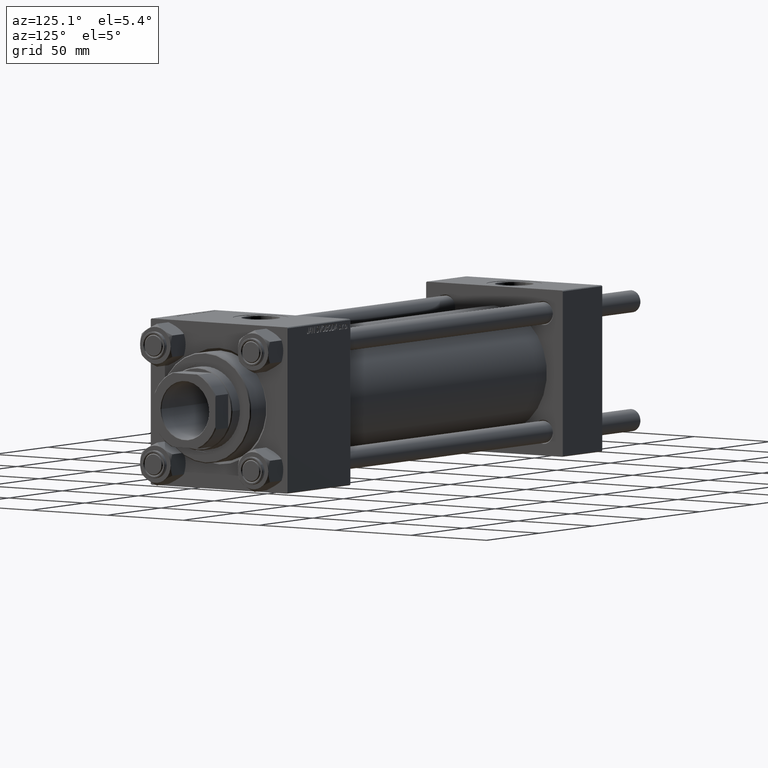
[diagram: clean part render]
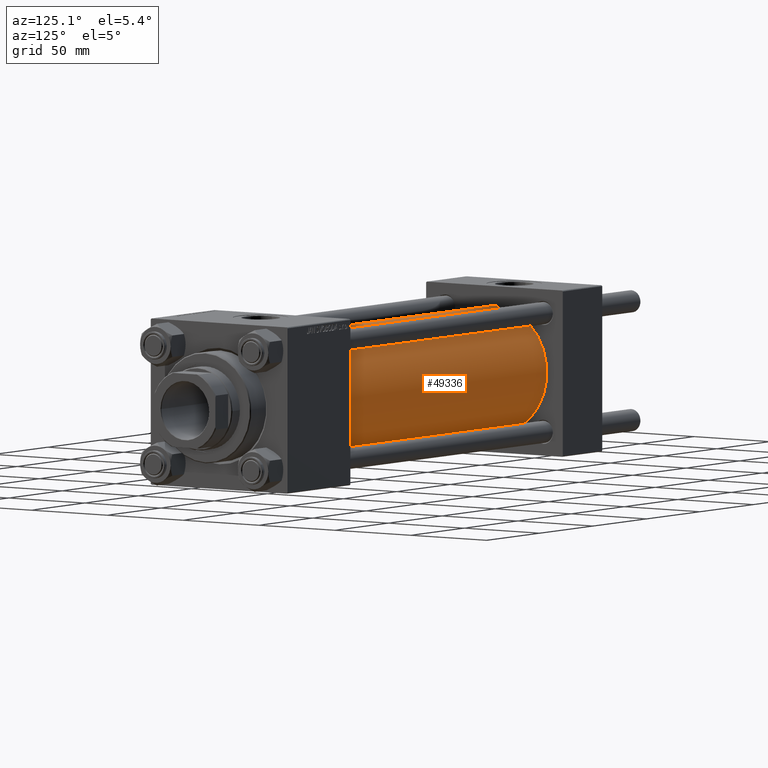
[diagram: same view with one face highlighted and labeled with its STEP entity id]
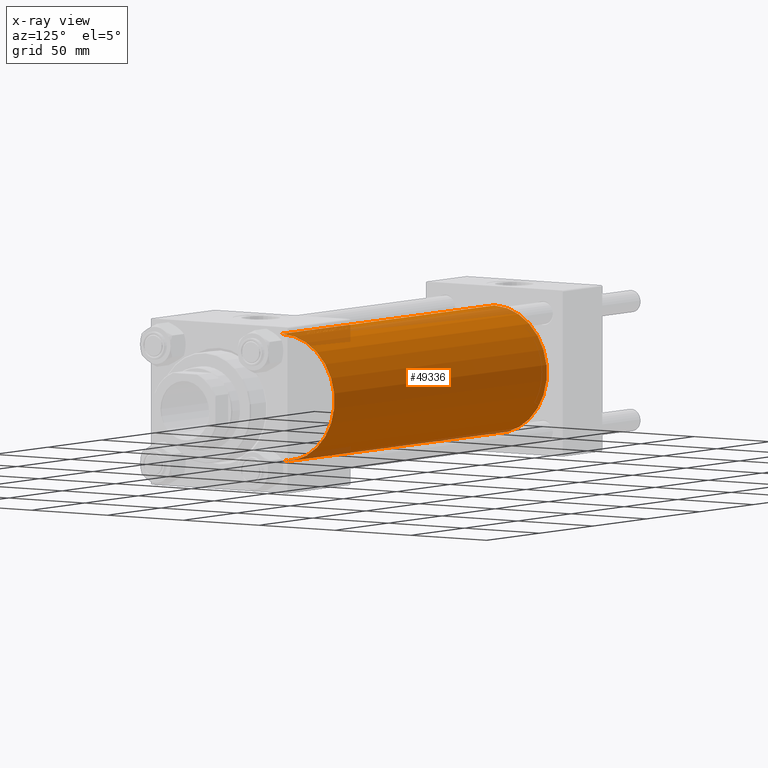
[diagram: x-ray of the same camera — body ghosted, the highlighted face saturated]
A machine part, auxiliary view. The second image highlights one B-rep face of the part: STEP entity #49336.
The next image is the same camera in x-ray: the body ghosted, the highlighted face saturated — about 9% of this face is hidden behind the body in this view.
In plain terms, the highlighted cylindrical surface (partial cylindrical patch) has radius 34.5 mm, axis along (-1, -0, -0).
Its self-contained STEP definition (entity closure, byte-faithful):
#35 = DIRECTION ( 'NONE',  ( 0.000000000000000000, 0.000000000000000000, 1.000000000000000000 ) ) ;
#1356 = AXIS2_PLACEMENT_3D ( 'NONE', #45548, #11609, #35 ) ;
#1374 = CARTESIAN_POINT ( 'NONE',  ( 236.0000000000000284, 0.000000000000000000, 34.49999999999999289 ) ) ;
#3433 = VECTOR ( 'NONE', #36894, 1000.000000000000000 ) ;
#4858 = CARTESIAN_POINT ( 'NONE',  ( 236.0000000000000284, 0.000000000000000000, 0.000000000000000000 ) ) ;
#5747 = FACE_OUTER_BOUND ( 'NONE', #30326, .T. ) ;
#6255 = DIRECTION ( 'NONE',  ( -1.000000000000000000, -0.000000000000000000, -0.000000000000000000 ) ) ;
#6381 = CARTESIAN_POINT ( 'NONE',  ( 37.00000000000000711, 4.225031457058367344E-15, -34.49999999999999289 ) ) ;
#7427 = EDGE_CURVE ( 'NONE', #30399, #25064, #9023, .T. ) ;
#9023 = CIRCLE ( 'NONE', #24282, 34.49999999999999289 ) ;
#10728 = ORIENTED_EDGE ( 'NONE', *, *, #15856, .T. ) ;
#11609 = DIRECTION ( 'NONE',  ( 1.000000000000000000, -0.000000000000000000, 0.000000000000000000 ) ) ;
#12590 = EDGE_CURVE ( 'NONE', #25064, #18631, #35892, .T. ) ;
#14836 = CARTESIAN_POINT ( 'NONE',  ( 37.00000000000000711, 0.000000000000000000, 34.49999999999999289 ) ) ;
#15856 = EDGE_CURVE ( 'NONE', #30399, #27403, #32635, .T. ) ;
#18631 = VERTEX_POINT ( 'NONE', #14836 ) ;
#20972 = DIRECTION ( 'NONE',  ( 1.000000000000000000, 0.000000000000000000, 0.000000000000000000 ) ) ;
#21100 = CARTESIAN_POINT ( 'NONE',  ( 236.0000000000000284, 0.000000000000000000, 0.000000000000000000 ) ) ;
#21609 = DIRECTION ( 'NONE',  ( 0.000000000000000000, 0.000000000000000000, 1.000000000000000000 ) ) ;
#23061 = CIRCLE ( 'NONE', #1356, 34.49999999999999289 ) ;
#23628 = VECTOR ( 'NONE', #28867, 1000.000000000000000 ) ;
#24282 = AXIS2_PLACEMENT_3D ( 'NONE', #4858, #20972, #40313 ) ;
#25064 = VERTEX_POINT ( 'NONE', #1374 ) ;
#27403 = VERTEX_POINT ( 'NONE', #6381 ) ;
#28046 = ORIENTED_EDGE ( 'NONE', *, *, #12590, .F. ) ;
#28623 = CARTESIAN_POINT ( 'NONE',  ( 236.0000000000000284, 0.000000000000000000, 34.49999999999999289 ) ) ;
#28867 = DIRECTION ( 'NONE',  ( -1.000000000000000000, -0.000000000000000000, -0.000000000000000000 ) ) ;
#30326 = EDGE_LOOP ( 'NONE', ( #47090, #10728, #42817, #28046 ) ) ;
#30399 = VERTEX_POINT ( 'NONE', #31397 ) ;
#31397 = CARTESIAN_POINT ( 'NONE',  ( 236.0000000000000284, 4.225031457058367344E-15, -34.49999999999999289 ) ) ;
#32385 = CARTESIAN_POINT ( 'NONE',  ( 236.0000000000000284, 4.225031457058367344E-15, -34.49999999999999289 ) ) ;
#32635 = LINE ( 'NONE', #32385, #23628 ) ;
#35136 = AXIS2_PLACEMENT_3D ( 'NONE', #21100, #6255, #21609 ) ;
#35892 = LINE ( 'NONE', #28623, #3433 ) ;
#36894 = DIRECTION ( 'NONE',  ( -1.000000000000000000, -0.000000000000000000, -0.000000000000000000 ) ) ;
#40313 = DIRECTION ( 'NONE',  ( 0.000000000000000000, 0.000000000000000000, -1.000000000000000000 ) ) ;
#42817 = ORIENTED_EDGE ( 'NONE', *, *, #47306, .T. ) ;
#45548 = CARTESIAN_POINT ( 'NONE',  ( 37.00000000000000711, 0.000000000000000000, 0.000000000000000000 ) ) ;
#47090 = ORIENTED_EDGE ( 'NONE', *, *, #7427, .F. ) ;
#47306 = EDGE_CURVE ( 'NONE', #27403, #18631, #23061, .T. ) ;
#47715 = CYLINDRICAL_SURFACE ( 'NONE', #35136, 34.49999999999999289 ) ;
#49336 = ADVANCED_FACE ( 'NONE', ( #5747 ), #47715, .T. ) ;